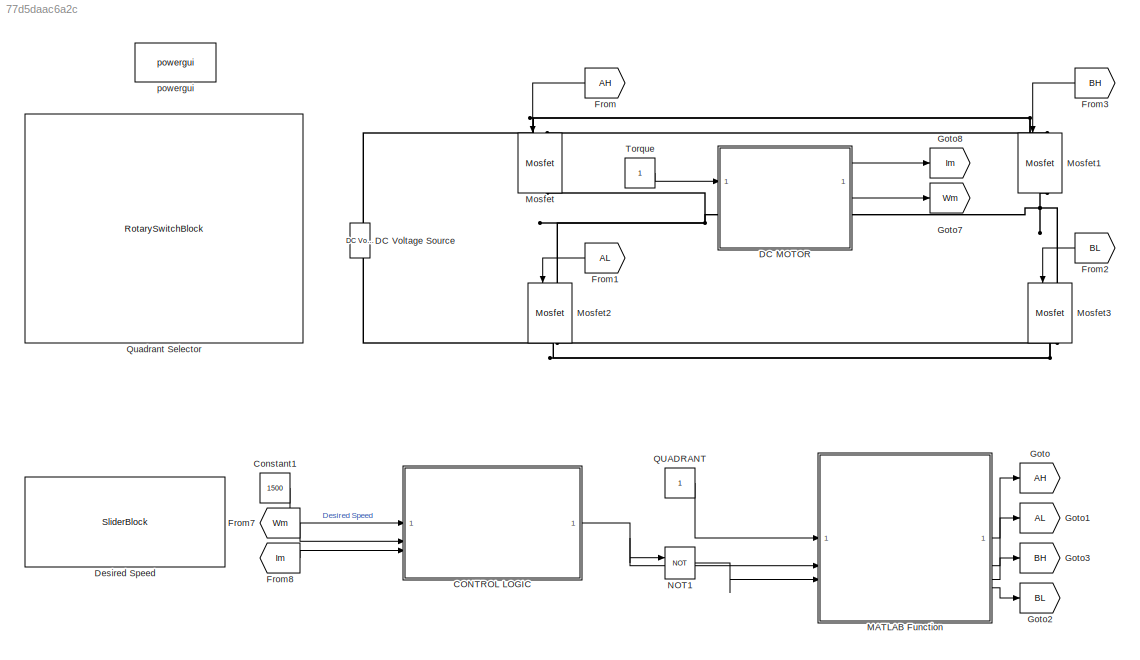
MODEL slx_77d5daac6a2c
KIND model
CONFIG AbsTol = auto
CONFIG EnableMultiTasking = off
CONFIG FixedStep = 10e-6
CONFIG MaxStep = auto
CONFIG MinStep = auto
CONFIG RelTol = 1e-3
CONFIG SampleTimeConstraint = Unconstrained
CONFIG SolverName = FixedStepAuto
CONFIG StartTime = 0.0
CONFIG StopTime = inf
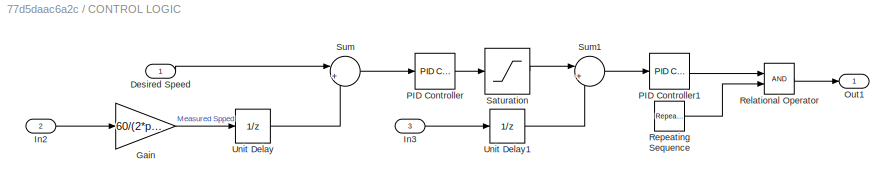
BLOCK [SubSystem] CONTROL LOGIC
BLOCK [Inport] CONTROL LOGIC/Desired Speed
BLOCK [Gain] CONTROL LOGIC/Gain
  Gain = 60/(2*pi)
BLOCK [Inport] CONTROL LOGIC/In2
  Port = 2
BLOCK [Inport] CONTROL LOGIC/In3
  Port = 3
BLOCK [Outport] CONTROL LOGIC/Out1
BLOCK [Reference] CONTROL LOGIC/PID Controller  REF=slpidlib/PID Controller
  SourceBlock = slpidlib/PID Controller
  SourceType = PID 1dof
BLOCK [Reference] CONTROL LOGIC/PID Controller1  REF=slpidlib/PID Controller
  SourceBlock = slpidlib/PID Controller
  SourceType = PID 1dof
BLOCK [RelationalOperator] CONTROL LOGIC/Relational Operator
  InputSameDT = off
  OutDataTypeStr = boolean
  RndMeth = Simplest
BLOCK [Reference] CONTROL LOGIC/Repeating Sequence  REF=simulink/Sources/Repeating
Sequence
  SourceBlock = simulink/Sources/Repeating\nSequence
  SourceType = Repeating table
BLOCK [Saturate] CONTROL LOGIC/Saturation
  LowerLimit = 0
  UpperLimit = 50
BLOCK [Sum] CONTROL LOGIC/Sum
  Inputs = |+-
BLOCK [Sum] CONTROL LOGIC/Sum1
  Inputs = |+-
BLOCK [UnitDelay] CONTROL LOGIC/Unit Delay
  HasFrameUpgradeWarning = on
  SampleTime = -1
BLOCK [UnitDelay] CONTROL LOGIC/Unit Delay1
  HasFrameUpgradeWarning = on
  SampleTime = -1
BLOCK [Constant] Constant1
  Value = 1500
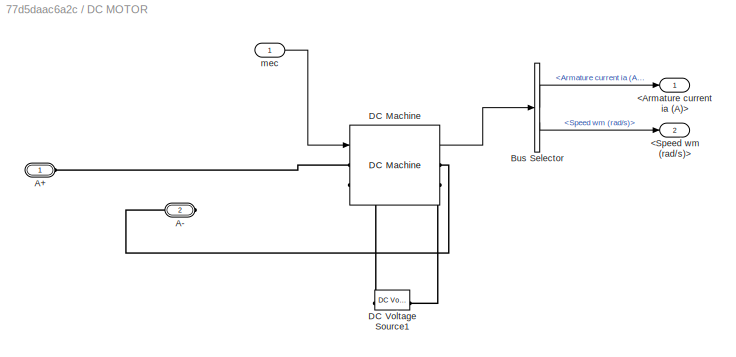
BLOCK [SubSystem] DC MOTOR
BLOCK [Outport] DC MOTOR/<Armature current ia (A)>
BLOCK [Outport] DC MOTOR/<Speed wm (rad//s)>
  Port = 2
BLOCK [PMIOPort] DC MOTOR/A+
  Side = Left
BLOCK [PMIOPort] DC MOTOR/A-
  Port = 2
  Side = Right
BLOCK [BusSelector] DC MOTOR/Bus Selector
  OutputSignals = Armature current ia (A),Speed wm (rad/s)
BLOCK [Reference] DC MOTOR/DC Machine  REF=spsDCMachineLib/DC Machine
  SourceBlock = spsDCMachineLib/DC Machine
  SourceType = DC machine
BLOCK [Reference] DC MOTOR/DC Voltage Source1  REF=spsDCVoltageSourceLib/DC Voltage Source
  NameLocation = right
  SourceBlock = spsDCVoltageSourceLib/DC Voltage Source
  SourceType = DC Voltage Source
BLOCK [Inport] DC MOTOR/mec
BLOCK [Reference] DC Voltage Source  REF=spsDCVoltageSourceLib/DC Voltage Source
  LibrarySourceBlock = sps_lib/Sources/DC Voltage Source
  SourceBlock = spsDCVoltageSourceLib/DC Voltage Source
  SourceType = DC Voltage Source
BLOCK [SliderBlock] Desired Speed
  LabelPosition = Hide
  ScaleMax = 2000
BLOCK [From] From
  GotoTag = AH
  NameLocation = top
BLOCK [From] From1
  GotoTag = AL
  NameLocation = top
BLOCK [From] From2
  GotoTag = BL
  NameLocation = top
BLOCK [From] From3
  GotoTag = BH
  NameLocation = top
BLOCK [From] From7
  GotoTag = Wm
BLOCK [From] From8
  GotoTag = Im
BLOCK [Goto] Goto
  GotoTag = AH
BLOCK [Goto] Goto1
  GotoTag = AL
BLOCK [Goto] Goto2
  GotoTag = BL
BLOCK [Goto] Goto3
  GotoTag = BH
BLOCK [Goto] Goto7
  GotoTag = Wm
BLOCK [Goto] Goto8
  GotoTag = Im
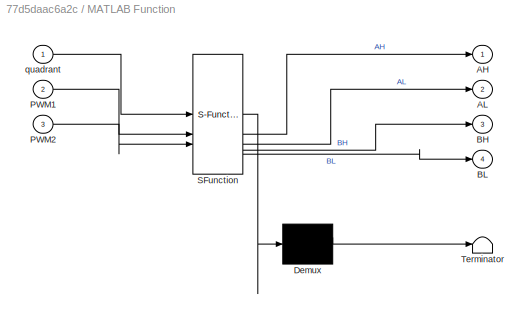
BLOCK [SubSystem] MATLAB Function
  ErrorFcn = Stateflow.Translate.translate
  PermitHierarchicalResolution = ExplicitOnly
  SFBlockType = MATLAB Function
  TreatAsAtomicUnit = on
BLOCK [Demux] MATLAB Function/ Demux 
  Outputs = 1
BLOCK [S-Function] MATLAB Function/ SFunction 
  EnableBusSupport = on
  FunctionName = sf_sfun
  PortCounts = [3 5]
  SFcnIsStateOwnerBlock = off
  SFunctionDeploymentMode = off
  Tag = Stateflow S-Function 2
BLOCK [Terminator] MATLAB Function/ Terminator 
BLOCK [Outport] MATLAB Function/AH
BLOCK [Outport] MATLAB Function/AL
  Port = 2
BLOCK [Outport] MATLAB Function/BH
  Port = 3
BLOCK [Outport] MATLAB Function/BL
  Port = 4
BLOCK [Inport] MATLAB Function/PWM1
  Port = 2
BLOCK [Inport] MATLAB Function/PWM2
  Port = 3
BLOCK [Inport] MATLAB Function/quadrant
BLOCK [Reference] Mosfet  REF=spsMosfetLib/Mosfet
  LibrarySourceBlock = sps_lib/Power Electronics/Mosfet
  NameLocation = left
  SourceBlock = spsMosfetLib/Mosfet
  SourceType = Mosfet
BLOCK [Reference] Mosfet1  REF=spsMosfetLib/Mosfet
  LibrarySourceBlock = sps_lib/Power Electronics/Mosfet
  NameLocation = left
  SourceBlock = spsMosfetLib/Mosfet
  SourceType = Mosfet
BLOCK [Reference] Mosfet2  REF=spsMosfetLib/Mosfet
  LibrarySourceBlock = sps_lib/Power Electronics/Mosfet
  NameLocation = left
  SourceBlock = spsMosfetLib/Mosfet
  SourceType = Mosfet
BLOCK [Reference] Mosfet3  REF=spsMosfetLib/Mosfet
  LibrarySourceBlock = sps_lib/Power Electronics/Mosfet
  NameLocation = left
  SourceBlock = spsMosfetLib/Mosfet
  SourceType = Mosfet
BLOCK [Logic] NOT1
  AllPortsSameDT = off
  IconShape = distinctive
  Operator = NOT
  OutDataTypeStr = boolean
BLOCK [Constant] QUADRANT
BLOCK [RotarySwitchBlock] Quadrant Selector
  LabelPosition = Hide
BLOCK [Constant] Torque
BLOCK [Reference] powergui  REF=sps_lib/powergui
  LibrarySourceBlock = sps_lib/powergui
  Priority = 1
  SourceBlock = sps_lib/powergui
  SourceType = PSB option menu block
LINE CONTROL LOGIC/Desired Speed:1 -> CONTROL LOGIC/Sum:1
LINE CONTROL LOGIC/Gain:1 -> CONTROL LOGIC/Unit Delay:1
LINE CONTROL LOGIC/In2:1 -> CONTROL LOGIC/Gain:1
LINE CONTROL LOGIC/In3:1 -> CONTROL LOGIC/Unit Delay1:1
LINE CONTROL LOGIC/PID Controller1:1 -> CONTROL LOGIC/Relational Operator:1
LINE CONTROL LOGIC/PID Controller:1 -> CONTROL LOGIC/Saturation:1
LINE CONTROL LOGIC/Relational Operator:1 -> CONTROL LOGIC/Out1:1
LINE CONTROL LOGIC/Repeating Sequence:1 -> CONTROL LOGIC/Relational Operator:2
LINE CONTROL LOGIC/Saturation:1 -> CONTROL LOGIC/Sum1:1
LINE CONTROL LOGIC/Sum1:1 -> CONTROL LOGIC/PID Controller1:1
LINE CONTROL LOGIC/Sum:1 -> CONTROL LOGIC/PID Controller:1
LINE CONTROL LOGIC/Unit Delay1:1 -> CONTROL LOGIC/Sum1:2
LINE CONTROL LOGIC/Unit Delay:1 -> CONTROL LOGIC/Sum:2
NET CONTROL LOGIC:1 -> MATLAB Function:2, NOT1:1
LINE Constant1:1 -> CONTROL LOGIC:1
LINE DC MOTOR/Bus Selector:1 -> DC MOTOR/<Armature current ia (A)>:1
LINE DC MOTOR/Bus Selector:2 -> DC MOTOR/<Speed wm (rad//s)>:1
LINE DC MOTOR/DC Machine:1 -> DC MOTOR/Bus Selector:1
LINE DC MOTOR/mec:1 -> DC MOTOR/DC Machine:1
LINE DC MOTOR:1 -> Goto8:1
LINE DC MOTOR:2 -> Goto7:1
LINE From1:1 -> Mosfet2:1
LINE From2:1 -> Mosfet3:1
LINE From3:1 -> Mosfet1:1
LINE From7:1 -> CONTROL LOGIC:2
LINE From8:1 -> CONTROL LOGIC:3
LINE From:1 -> Mosfet:1
LINE MATLAB Function:1 -> Goto:1
LINE MATLAB Function:2 -> Goto1:1
LINE MATLAB Function:3 -> Goto3:1
LINE MATLAB Function:4 -> Goto2:1
LINE NOT1:1 -> MATLAB Function:3
LINE QUADRANT:1 -> MATLAB Function:1
LINE Torque:1 -> DC MOTOR:1
PLINE DC MOTOR/A+:RConn1 -- DC MOTOR/DC Machine:LConn1
PLINE DC MOTOR/A-:RConn1 -- DC MOTOR/DC Machine:RConn1
PLINE DC MOTOR/DC Machine:LConn2 -- DC MOTOR/DC Voltage Source1:RConn1
PLINE DC MOTOR/DC Machine:RConn2 -- DC MOTOR/DC Voltage Source1:LConn1
PNET net1: DC MOTOR:LConn1 -- Mosfet2:LConn1 -- Mosfet:RConn1
PNET net2: DC MOTOR:RConn1 -- Mosfet1:RConn1 -- Mosfet3:LConn1
PNET net3: DC Voltage Source:LConn1 -- Mosfet2:RConn1 -- Mosfet3:RConn1
PNET net4: DC Voltage Source:RConn1 -- Mosfet1:LConn1 -- Mosfet:LConn1
note: NET lines group one-source signal fan-out (src -> all destinations, sorted); 1:1 wires keep LINE; PNET lines group multi-terminal physical nets as a canonical sorted terminal list (undirected conserving connections); 2-terminal nets keep the pairwise PLINE form
CHART MATLAB Function states=1 transitions=1
  STATE_LABEL 'eML_blk_kernel()'
  STATE_LABEL 'SCRIPT:\nfunction [AH, AL, BH, BL] = quadrant_control(quadrant, PWM1, PWM2)\n% Inputs:\n%   quadrant: 1, 2, 3, or 4 (operation mode)\n%   PWM1: Primary PWM signal\n%   PWM2: Complementary PWM signal (~PWM1)\n%   current_in: Measured current (can be +ve or -ve)\n%\n% Outputs:\n%   AH, AL, BH, BL: Gate signals (logical)\n\n\n% Initialize all gate signals as OFF (logical false)\nAH = false; AL = false; BH = false...<+847ch>'
CHART  states=0 transitions=0
